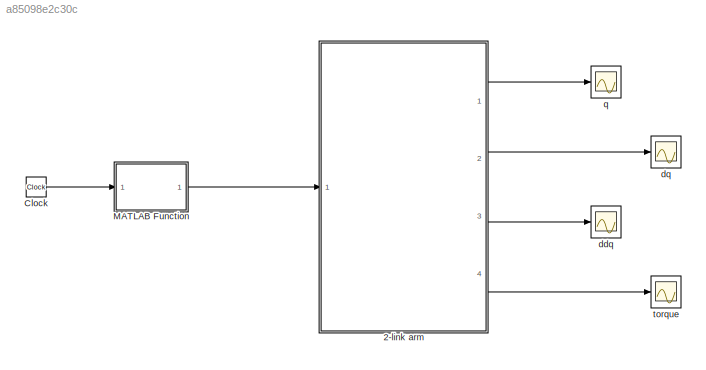
MODEL slx_a85098e2c30c
KIND model
CONFIG AbsTol = auto
CONFIG EnableMultiTasking = off
CONFIG FixedStep = auto
CONFIG MaxStep = auto
CONFIG MinStep = auto
CONFIG RelTol = 1e-3
CONFIG SampleTimeConstraint = Unconstrained
CONFIG SolverName = VariableStepAuto
CONFIG StartTime = 0.0
CONFIG StopTime = 120
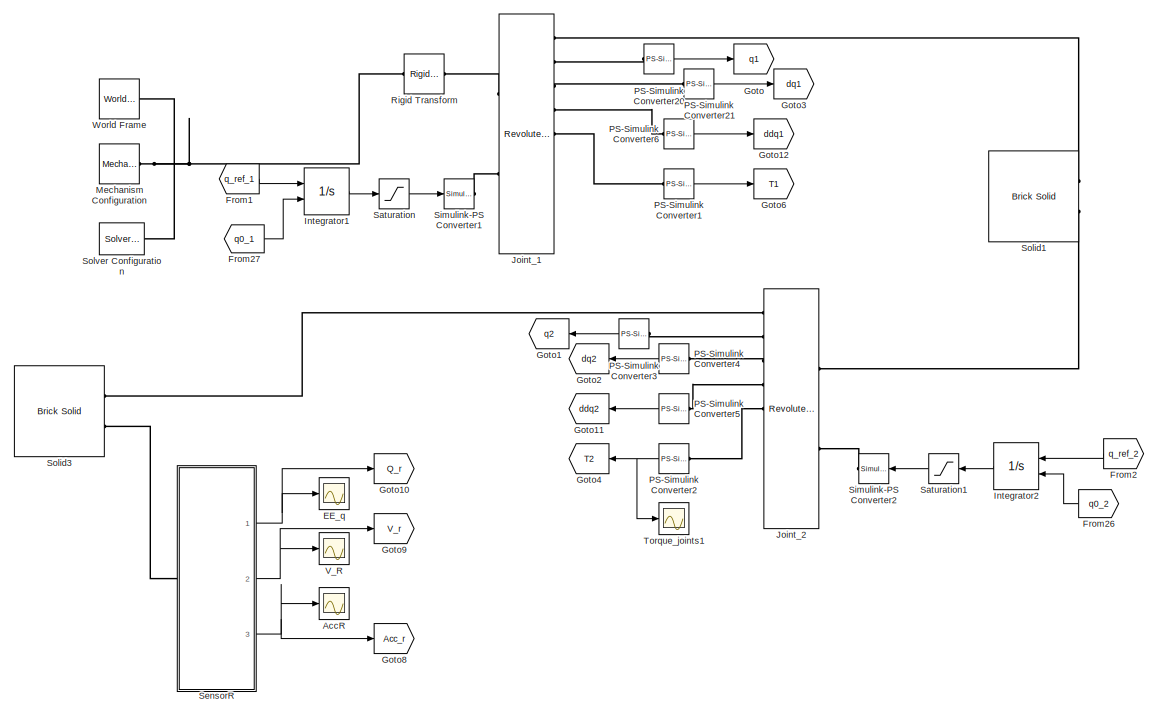
[diagram: 2-link arm - part 1/2, full width, top band]
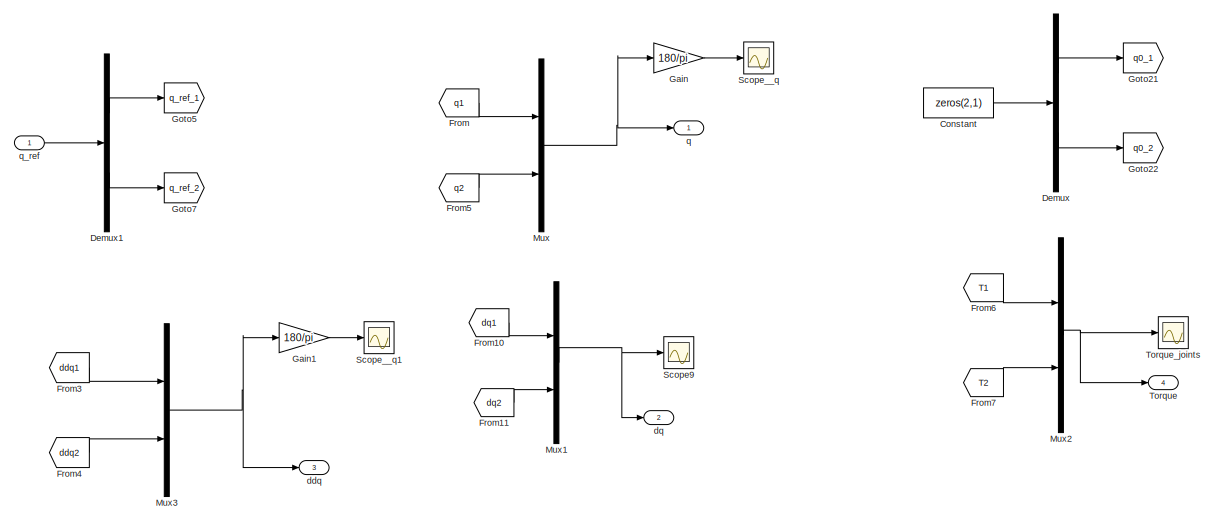
[diagram: 2-link arm - part 2/2, full width, bottom band]
BLOCK [SubSystem] 2-link arm
  Ports = [1, 4]
  RequestExecContextInheritance = off
BLOCK [Scope] 2-link arm/AccR
  Floating = off
  NumInputPorts = 1
  Ports = [1]
  ScopeSpecificationString = Simulink.scopes.TimeScopeBlockCfg('CurrentConfiguration', extmgr.ConfigurationSet(extmgr.Configuration('Core','General UI',true),extmgr.Configuration('Core','Source UI',true),extmgr.Configuration('Sources','WiredSimulink',true,'DataLoggingVariableName','ScopeData1','DataLoggingLimitDataPoints',true,'DataLoggingSaveFormat','StructureWithTime','DataLoggingDecimation','1','DataLoggingDecimateData',tr...<+1533ch>
BLOCK [Constant] 2-link arm/Constant
  Value = zeros(2,1)
BLOCK [Demux] 2-link arm/Demux
  Outputs = 2
  Ports = [1, 2]
BLOCK [Demux] 2-link arm/Demux1
  Outputs = 2
  Ports = [1, 2]
BLOCK [Scope] 2-link arm/EE_q
  Floating = off
  NumInputPorts = 1
  Ports = [1]
  ScopeSpecificationString = Simulink.scopes.TimeScopeBlockCfg('CurrentConfiguration', extmgr.ConfigurationSet(extmgr.Configuration('Core','General UI',true),extmgr.Configuration('Core','Source UI',true),extmgr.Configuration('Sources','WiredSimulink',true,'DataLoggingVariableName','ScopeData2','DataLoggingLimitDataPoints',true,'DataLoggingSaveFormat','Array','DataLoggingDecimation','1','DataLoggingDecimateData',true),extmgr.C...<+1597ch>
BLOCK [From] 2-link arm/From
  GotoTag = q1
BLOCK [From] 2-link arm/From1
  GotoTag = q_ref_1
BLOCK [From] 2-link arm/From10
  GotoTag = dq1
BLOCK [From] 2-link arm/From11
  GotoTag = dq2
BLOCK [From] 2-link arm/From2
  GotoTag = q_ref_2
  NameLocation = top
BLOCK [From] 2-link arm/From26
  GotoTag = q0_2
  NameLocation = top
BLOCK [From] 2-link arm/From27
  GotoTag = q0_1
BLOCK [From] 2-link arm/From3
  GotoTag = ddq1
BLOCK [From] 2-link arm/From4
  GotoTag = ddq2
BLOCK [From] 2-link arm/From5
  GotoTag = q2
BLOCK [From] 2-link arm/From6
  GotoTag = T1
BLOCK [From] 2-link arm/From7
  GotoTag = T2
BLOCK [Gain] 2-link arm/Gain
  Gain = 180/pi
BLOCK [Gain] 2-link arm/Gain1
  Gain = 180/pi
BLOCK [Goto] 2-link arm/Goto
  GotoTag = q1
BLOCK [Goto] 2-link arm/Goto1
  GotoTag = q2
  NameLocation = top
BLOCK [Goto] 2-link arm/Goto10
  GotoTag = Q_r
BLOCK [Goto] 2-link arm/Goto11
  GotoTag = ddq2
  NameLocation = top
BLOCK [Goto] 2-link arm/Goto12
  GotoTag = ddq1
BLOCK [Goto] 2-link arm/Goto2
  GotoTag = dq2
  NameLocation = top
BLOCK [Goto] 2-link arm/Goto21
  GotoTag = q0_1
BLOCK [Goto] 2-link arm/Goto22
  GotoTag = q0_2
BLOCK [Goto] 2-link arm/Goto3
  GotoTag = dq1
BLOCK [Goto] 2-link arm/Goto4
  GotoTag = T2
  NameLocation = top
BLOCK [Goto] 2-link arm/Goto5
  GotoTag = q_ref_1
BLOCK [Goto] 2-link arm/Goto6
  GotoTag = T1
BLOCK [Goto] 2-link arm/Goto7
  GotoTag = q_ref_2
BLOCK [Goto] 2-link arm/Goto8
  GotoTag = Acc_r
BLOCK [Goto] 2-link arm/Goto9
  GotoTag = V_r
BLOCK [Integrator] 2-link arm/Integrator1
  InitialConditionSource = external
  Ports = [2, 1]
BLOCK [Integrator] 2-link arm/Integrator2
  InitialConditionSource = external
  NameLocation = top
  Ports = [2, 1]
BLOCK [Reference] 2-link arm/Joint_1  REF=sm_lib/Joints/Revolute Joint
  Ports = [0, 0, 0, 0, 0, 2, 9]
  SourceBlock = sm_lib/Joints/Revolute Joint
  SourceProductBaseCode = MS
  SourceType = Revolute Joint
BLOCK [Reference] 2-link arm/Joint_2  REF=sm_lib/Joints/Revolute Joint
  Ports = [0, 0, 0, 0, 0, 2, 9]
  SourceBlock = sm_lib/Joints/Revolute Joint
  SourceProductBaseCode = MS
  SourceType = Revolute Joint
BLOCK [Reference] 2-link arm/Mechanism Configuration  REF=sm_lib/Utilities/Mechanism
Configuration
  Ports = [0, 0, 0, 0, 0, 0, 1]
  SourceBlock = sm_lib/Utilities/Mechanism\nConfiguration
  SourceProductBaseCode = MS
  SourceType = Mechanism\nConfiguration
BLOCK [Mux] 2-link arm/Mux
  DisplayOption = bar
  Inputs = 2
  Ports = [2, 1]
BLOCK [Mux] 2-link arm/Mux1
  DisplayOption = bar
  Inputs = 2
  Ports = [2, 1]
BLOCK [Mux] 2-link arm/Mux2
  DisplayOption = bar
  Inputs = 2
  Ports = [2, 1]
BLOCK [Mux] 2-link arm/Mux3
  DisplayOption = bar
  Inputs = 2
  Ports = [2, 1]
BLOCK [Reference] 2-link arm/PS-Simulink Converter1  REF=nesl_utility/PS-Simulink
Converter
  Ports = [0, 1, 0, 0, 0, 1]
  SourceBlock = nesl_utility/PS-Simulink\nConverter
  SourceProductBaseCode = SS
  SourceType = PS-Simulink\nConverter
BLOCK [Reference] 2-link arm/PS-Simulink Converter2  REF=nesl_utility/PS-Simulink
Converter
  NameLocation = top
  Ports = [0, 1, 0, 0, 0, 1]
  SourceBlock = nesl_utility/PS-Simulink\nConverter
  SourceProductBaseCode = SS
  SourceType = PS-Simulink\nConverter
BLOCK [Reference] 2-link arm/PS-Simulink Converter20  REF=nesl_utility/PS-Simulink
Converter
  Ports = [0, 1, 0, 0, 0, 1]
  SourceBlock = nesl_utility/PS-Simulink\nConverter
  SourceProductBaseCode = SS
  SourceType = PS-Simulink\nConverter
BLOCK [Reference] 2-link arm/PS-Simulink Converter21  REF=nesl_utility/PS-Simulink
Converter
  Ports = [0, 1, 0, 0, 0, 1]
  SourceBlock = nesl_utility/PS-Simulink\nConverter
  SourceProductBaseCode = SS
  SourceType = PS-Simulink\nConverter
BLOCK [Reference] 2-link arm/PS-Simulink Converter3  REF=nesl_utility/PS-Simulink
Converter
  NameLocation = top
  Ports = [0, 1, 0, 0, 0, 1]
  SourceBlock = nesl_utility/PS-Simulink\nConverter
  SourceProductBaseCode = SS
  SourceType = PS-Simulink\nConverter
BLOCK [Reference] 2-link arm/PS-Simulink Converter4  REF=nesl_utility/PS-Simulink
Converter
  NameLocation = top
  Ports = [0, 1, 0, 0, 0, 1]
  SourceBlock = nesl_utility/PS-Simulink\nConverter
  SourceProductBaseCode = SS
  SourceType = PS-Simulink\nConverter
BLOCK [Reference] 2-link arm/PS-Simulink Converter5  REF=nesl_utility/PS-Simulink
Converter
  NameLocation = top
  Ports = [0, 1, 0, 0, 0, 1]
  SourceBlock = nesl_utility/PS-Simulink\nConverter
  SourceProductBaseCode = SS
  SourceType = PS-Simulink\nConverter
BLOCK [Reference] 2-link arm/PS-Simulink Converter6  REF=nesl_utility/PS-Simulink
Converter
  Ports = [0, 1, 0, 0, 0, 1]
  SourceBlock = nesl_utility/PS-Simulink\nConverter
  SourceProductBaseCode = SS
  SourceType = PS-Simulink\nConverter
BLOCK [Reference] 2-link arm/Rigid Transform  REF=sm_lib/Frames and
Transforms/Rigid
Transform
  Ports = [0, 0, 0, 0, 0, 1, 1]
  SourceBlock = sm_lib/Frames and\nTransforms/Rigid\nTransform
  SourceProductBaseCode = MS
  SourceType = Rigid\nTransform
BLOCK [Saturate] 2-link arm/Saturation
  LowerLimit = -170*pi/180
  UpperLimit = 170*pi/180
BLOCK [Saturate] 2-link arm/Saturation1
  LowerLimit = -170*pi/180
  UpperLimit = 170*pi/180
BLOCK [Scope] 2-link arm/Scope9
  Floating = off
  NumInputPorts = 1
  Ports = [1]
  ScopeSpecificationString = Simulink.scopes.TimeScopeBlockCfg('CurrentConfiguration', extmgr.ConfigurationSet(extmgr.Configuration('Core','General UI',true),extmgr.Configuration('Core','Source UI',true),extmgr.Configuration('Sources','WiredSimulink',true,'DataLoggingVariableName','ScopeData4','DataLoggingLimitDataPoints',true,'DataLoggingSaveFormat','Array','DataLoggingDecimation','1','DataLoggingDecimateData',true),extmgr.C...<+1635ch>
BLOCK [Scope] 2-link arm/Scope__q
  Floating = off
  NumInputPorts = 1
  Ports = [1]
  ScopeSpecificationString = Simulink.scopes.TimeScopeBlockCfg('CurrentConfiguration', extmgr.ConfigurationSet(extmgr.Configuration('Core','General UI',true),extmgr.Configuration('Core','Source UI',true),extmgr.Configuration('Sources','WiredSimulink',true,'DataLoggingVariableName','ScopeData5','DataLoggingLimitDataPoints',true,'DataLoggingSaveFormat','Array','DataLoggingDecimation','1','DataLoggingDecimateData',true),extmgr.C...<+1545ch>
BLOCK [Scope] 2-link arm/Scope__q1
  Floating = off
  NumInputPorts = 1
  Ports = [1]
  ScopeSpecificationString = Simulink.scopes.TimeScopeBlockCfg('CurrentConfiguration', extmgr.ConfigurationSet(extmgr.Configuration('Core','General UI',true),extmgr.Configuration('Core','Source UI',true),extmgr.Configuration('Sources','WiredSimulink',true,'DataLoggingVariableName','ScopeData3','DataLoggingLimitDataPoints',true,'DataLoggingSaveFormat','Array','DataLoggingDecimation','1','DataLoggingDecimateData',true),extmgr.C...<+1545ch>
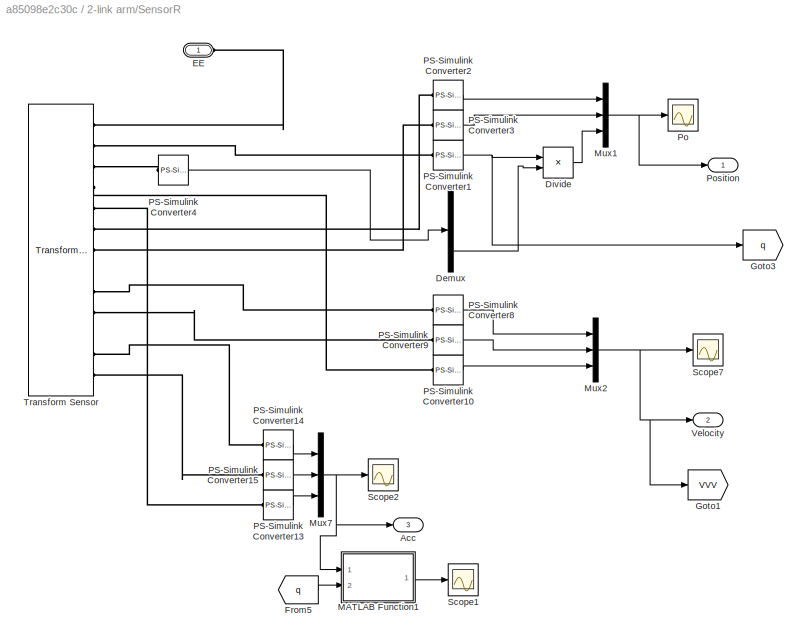
BLOCK [SubSystem] 2-link arm/SensorR
  Ports = [0, 3, 0, 0, 0, 1]
  RequestExecContextInheritance = off
BLOCK [Outport] 2-link arm/SensorR/Acc
  Port = 3
  VectorParamsAs1DForOutWhenUnconnected = off
BLOCK [Demux] 2-link arm/SensorR/Demux
  Outputs = 3
  Ports = [1, 3]
BLOCK [Product] 2-link arm/SensorR/Divide
  Inputs = **
  Ports = [2, 1]
BLOCK [PMIOPort] 2-link arm/SensorR/EE
  Side = Left
BLOCK [From] 2-link arm/SensorR/From5
  GotoTag = q
BLOCK [Goto] 2-link arm/SensorR/Goto1
  GotoTag = VVV
BLOCK [Goto] 2-link arm/SensorR/Goto3
  GotoTag = q
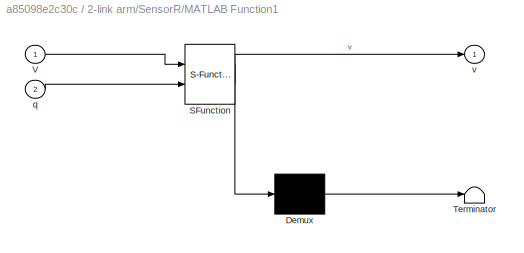
BLOCK [SubSystem] 2-link arm/SensorR/MATLAB Function1
  ErrorFcn = Stateflow.Translate.translate
  PermitHierarchicalResolution = ExplicitOnly
  Ports = [2, 1]
  RequestExecContextInheritance = off
  SFBlockType = MATLAB Function
  TreatAsAtomicUnit = on
BLOCK [Demux] 2-link arm/SensorR/MATLAB Function1/ Demux 
  Outputs = 1
  Ports = [1, 1]
BLOCK [S-Function] 2-link arm/SensorR/MATLAB Function1/ SFunction 
  EnableBusSupport = off
  FunctionName = sf_sfun
  PortCounts = [2 2]
  Ports = [2, 2]
  SFcnIsStateOwnerBlock = off
  SFunctionDeploymentMode = off
  Tag = Stateflow S-Function 11
BLOCK [Terminator] 2-link arm/SensorR/MATLAB Function1/ Terminator 
BLOCK [Inport] 2-link arm/SensorR/MATLAB Function1/V
BLOCK [Inport] 2-link arm/SensorR/MATLAB Function1/q
  Port = 2
BLOCK [Outport] 2-link arm/SensorR/MATLAB Function1/v
  VectorParamsAs1DForOutWhenUnconnected = off
BLOCK [Mux] 2-link arm/SensorR/Mux1
  DisplayOption = bar
  Inputs = 3
  Ports = [3, 1]
BLOCK [Mux] 2-link arm/SensorR/Mux2
  DisplayOption = bar
  Inputs = 3
  Ports = [3, 1]
BLOCK [Mux] 2-link arm/SensorR/Mux7
  DisplayOption = bar
  Inputs = 3
  Ports = [3, 1]
BLOCK [Reference] 2-link arm/SensorR/PS-Simulink Converter1  REF=nesl_utility/PS-Simulink
Converter
  Ports = [0, 1, 0, 0, 0, 1]
  SourceBlock = nesl_utility/PS-Simulink\nConverter
  SourceProductBaseCode = SS
  SourceType = PS-Simulink\nConverter
BLOCK [Reference] 2-link arm/SensorR/PS-Simulink Converter10  REF=nesl_utility/PS-Simulink
Converter
  Ports = [0, 1, 0, 0, 0, 1]
  SourceBlock = nesl_utility/PS-Simulink\nConverter
  SourceProductBaseCode = SS
  SourceType = PS-Simulink\nConverter
BLOCK [Reference] 2-link arm/SensorR/PS-Simulink Converter13  REF=nesl_utility/PS-Simulink
Converter
  Ports = [0, 1, 0, 0, 0, 1]
  SourceBlock = nesl_utility/PS-Simulink\nConverter
  SourceProductBaseCode = SS
  SourceType = PS-Simulink\nConverter
BLOCK [Reference] 2-link arm/SensorR/PS-Simulink Converter14  REF=nesl_utility/PS-Simulink
Converter
  Ports = [0, 1, 0, 0, 0, 1]
  SourceBlock = nesl_utility/PS-Simulink\nConverter
  SourceProductBaseCode = SS
  SourceType = PS-Simulink\nConverter
BLOCK [Reference] 2-link arm/SensorR/PS-Simulink Converter15  REF=nesl_utility/PS-Simulink
Converter
  Ports = [0, 1, 0, 0, 0, 1]
  SourceBlock = nesl_utility/PS-Simulink\nConverter
  SourceProductBaseCode = SS
  SourceType = PS-Simulink\nConverter
BLOCK [Reference] 2-link arm/SensorR/PS-Simulink Converter2  REF=nesl_utility/PS-Simulink
Converter
  Ports = [0, 1, 0, 0, 0, 1]
  SourceBlock = nesl_utility/PS-Simulink\nConverter
  SourceProductBaseCode = SS
  SourceType = PS-Simulink\nConverter
BLOCK [Reference] 2-link arm/SensorR/PS-Simulink Converter3  REF=nesl_utility/PS-Simulink
Converter
  Ports = [0, 1, 0, 0, 0, 1]
  SourceBlock = nesl_utility/PS-Simulink\nConverter
  SourceProductBaseCode = SS
  SourceType = PS-Simulink\nConverter
BLOCK [Reference] 2-link arm/SensorR/PS-Simulink Converter4  REF=nesl_utility/PS-Simulink
Converter
  Ports = [0, 1, 0, 0, 0, 1]
  SourceBlock = nesl_utility/PS-Simulink\nConverter
  SourceProductBaseCode = SS
  SourceType = PS-Simulink\nConverter
BLOCK [Reference] 2-link arm/SensorR/PS-Simulink Converter8  REF=nesl_utility/PS-Simulink
Converter
  Ports = [0, 1, 0, 0, 0, 1]
  SourceBlock = nesl_utility/PS-Simulink\nConverter
  SourceProductBaseCode = SS
  SourceType = PS-Simulink\nConverter
BLOCK [Reference] 2-link arm/SensorR/PS-Simulink Converter9  REF=nesl_utility/PS-Simulink
Converter
  Ports = [0, 1, 0, 0, 0, 1]
  SourceBlock = nesl_utility/PS-Simulink\nConverter
  SourceProductBaseCode = SS
  SourceType = PS-Simulink\nConverter
BLOCK [Scope] 2-link arm/SensorR/Po
  Floating = off
  NumInputPorts = 1
  Ports = [1]
  ScopeSpecificationString = Simulink.scopes.TimeScopeBlockCfg('CurrentConfiguration', extmgr.ConfigurationSet(extmgr.Configuration('Core','General UI',true),extmgr.Configuration('Core','Source UI',true),extmgr.Configuration('Sources','WiredSimulink',true,'DataLoggingVariableName','ScopeData1'),extmgr.Configuration('Visuals','Time Domain',true,'SerializedDisplays',{struct('MinYLimReal','-0.24098','MaxYLimReal','0.32883','YLab...<+1515ch>
BLOCK [Outport] 2-link arm/SensorR/Position
  VectorParamsAs1DForOutWhenUnconnected = off
BLOCK [Scope] 2-link arm/SensorR/Scope1
  Floating = off
  NumInputPorts = 1
  Ports = [1]
  ScopeSpecificationString = Simulink.scopes.TimeScopeBlockCfg('CurrentConfiguration', extmgr.ConfigurationSet(extmgr.Configuration('Core','General UI',true),extmgr.Configuration('Core','Source UI',true),extmgr.Configuration('Sources','WiredSimulink',true,'DataLoggingVariableName','ScopeData7'),extmgr.Configuration('Visuals','Time Domain',true,'SerializedDisplays',{struct('MinYLimReal','-0.03479','MaxYLimReal','0.0131','YLabe...<+1470ch>
BLOCK [Scope] 2-link arm/SensorR/Scope2
  Floating = off
  NumInputPorts = 1
  Ports = [1]
  ScopeSpecificationString = Simulink.scopes.TimeScopeBlockCfg('CurrentConfiguration', extmgr.ConfigurationSet(extmgr.Configuration('Core','General UI',true),extmgr.Configuration('Core','Source UI',true),extmgr.Configuration('Sources','WiredSimulink',true,'DataLoggingVariableName','ScopeData2'),extmgr.Configuration('Visuals','Time Domain',true,'SerializedDisplays',{struct('MinYLimReal','-1.03896','MaxYLimReal','0.52542','YLab...<+1478ch>
BLOCK [Scope] 2-link arm/SensorR/Scope7
  Floating = off
  NumInputPorts = 1
  Ports = [1]
  ScopeSpecificationString = Simulink.scopes.TimeScopeBlockCfg('CurrentConfiguration', extmgr.ConfigurationSet(extmgr.Configuration('Core','General UI',true),extmgr.Configuration('Core','Source UI',true),extmgr.Configuration('Sources','WiredSimulink',true,'DataLoggingVariableName','ScopeData3'),extmgr.Configuration('Visuals','Time Domain',true,'SerializedDisplays',{struct('MinYLimReal','-0.01552','MaxYLimReal','0.1147','YLabe...<+1428ch>
BLOCK [Reference] 2-link arm/SensorR/Transform Sensor  REF=sm_lib/Frames and
Transforms/Transform
Sensor
  Ports = [0, 0, 0, 0, 0, 1, 13]
  SourceBlock = sm_lib/Frames and\nTransforms/Transform\nSensor
  SourceProductBaseCode = MS
  SourceType = Transform\nSensor
BLOCK [Outport] 2-link arm/SensorR/Velocity
  Port = 2
  VectorParamsAs1DForOutWhenUnconnected = off
BLOCK [Reference] 2-link arm/Simulink-PS Converter1  REF=nesl_utility/Simulink-PS
Converter
  Ports = [1, 0, 0, 0, 0, 0, 1]
  SourceBlock = nesl_utility/Simulink-PS\nConverter
  SourceProductBaseCode = SS
  SourceType = Simulink-PS\nConverter
BLOCK [Reference] 2-link arm/Simulink-PS Converter2  REF=nesl_utility/Simulink-PS
Converter
  NameLocation = top
  Ports = [1, 0, 0, 0, 0, 0, 1]
  SourceBlock = nesl_utility/Simulink-PS\nConverter
  SourceProductBaseCode = SS
  SourceType = Simulink-PS\nConverter
BLOCK [Reference] 2-link arm/Solid1  REF=sm_lib/Body Elements/Brick Solid
  NameLocation = top
  Ports = [0, 0, 0, 0, 0, 2, 1]
  SourceBlock = sm_lib/Body Elements/Brick Solid
  SourceProductBaseCode = MS
  SourceType = Brick Solid
BLOCK [Reference] 2-link arm/Solid3  REF=sm_lib/Body Elements/Brick Solid
  NameLocation = top
  Ports = [0, 0, 0, 0, 0, 2, 1]
  SourceBlock = sm_lib/Body Elements/Brick Solid
  SourceProductBaseCode = MS
  SourceType = Brick Solid
BLOCK [Reference] 2-link arm/Solver Configuration  REF=nesl_utility/Solver
Configuration
  Ports = [0, 0, 0, 0, 0, 0, 1]
  SourceBlock = nesl_utility/Solver\nConfiguration
  SourceProductBaseCode = SS
  SourceType = Solver\nConfiguration
BLOCK [Outport] 2-link arm/Torque
  Port = 4
  VectorParamsAs1DForOutWhenUnconnected = off
BLOCK [Scope] 2-link arm/Torque_joints
  Floating = off
  NumInputPorts = 1
  Ports = [1]
  ScopeSpecificationString = Simulink.scopes.TimeScopeBlockCfg('CurrentConfiguration', extmgr.ConfigurationSet(extmgr.Configuration('Core','General UI',true),extmgr.Configuration('Core','Source UI',true),extmgr.Configuration('Sources','WiredSimulink',true,'DataLoggingVariableName','ScopeData1'),extmgr.Configuration('Visuals','Time Domain',true,'SerializedDisplays',{struct('MinYLimReal','-133.15813','MaxYLimReal','73.63666','Y...<+1621ch>
BLOCK [Scope] 2-link arm/Torque_joints1
  Floating = off
  NumInputPorts = 1
  Ports = [1]
  ScopeSpecificationString = Simulink.scopes.TimeScopeBlockCfg('CurrentConfiguration', extmgr.ConfigurationSet(extmgr.Configuration('Core','General UI',true),extmgr.Configuration('Core','Source UI',true),extmgr.Configuration('Sources','WiredSimulink',true,'DataLoggingVariableName','ScopeData1'),extmgr.Configuration('Visuals','Time Domain',true,'SerializedDisplays',{struct('MinYLimReal','-113.4809','MaxYLimReal','-112.79952','...<+1468ch>
BLOCK [Scope] 2-link arm/V_R
  Floating = off
  NumInputPorts = 1
  Ports = [1]
  ScopeSpecificationString = Simulink.scopes.TimeScopeBlockCfg('CurrentConfiguration', extmgr.ConfigurationSet(extmgr.Configuration('Core','General UI',true),extmgr.Configuration('Core','Source UI',true),extmgr.Configuration('Sources','WiredSimulink',true,'DataLoggingVariableName','ScopeData4','DataLoggingLimitDataPoints',true,'DataLoggingSaveFormat','Array','DataLoggingDecimation','1','DataLoggingDecimateData',true),extmgr.C...<+1577ch>
BLOCK [Reference] 2-link arm/World Frame  REF=sm_lib/Frames and
Transforms/World Frame
  Ports = [0, 0, 0, 0, 0, 0, 1]
  SourceBlock = sm_lib/Frames and\nTransforms/World Frame
  SourceProductBaseCode = MS
  SourceType = World Frame
BLOCK [Outport] 2-link arm/ddq
  Port = 3
  VectorParamsAs1DForOutWhenUnconnected = off
BLOCK [Outport] 2-link arm/dq
  Port = 2
  VectorParamsAs1DForOutWhenUnconnected = off
BLOCK [Outport] 2-link arm/q
  VectorParamsAs1DForOutWhenUnconnected = off
BLOCK [Inport] 2-link arm/q_ref
BLOCK [Clock] Clock
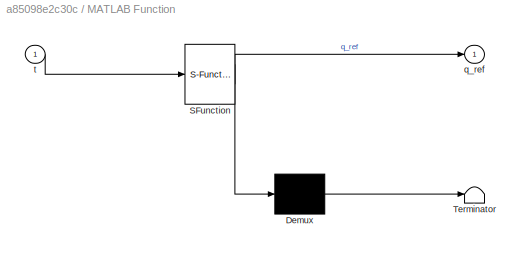
BLOCK [SubSystem] MATLAB Function
  ErrorFcn = Stateflow.Translate.translate
  PermitHierarchicalResolution = ExplicitOnly
  Ports = [1, 1]
  RequestExecContextInheritance = off
  SFBlockType = MATLAB Function
  TreatAsAtomicUnit = on
BLOCK [Demux] MATLAB Function/ Demux 
  Outputs = 1
  Ports = [1, 1]
BLOCK [S-Function] MATLAB Function/ SFunction 
  EnableBusSupport = off
  FunctionName = sf_sfun
  PortCounts = [1 2]
  Ports = [1, 2]
  SFcnIsStateOwnerBlock = off
  SFunctionDeploymentMode = off
  Tag = Stateflow S-Function 2
BLOCK [Terminator] MATLAB Function/ Terminator 
BLOCK [Outport] MATLAB Function/q_ref
  VectorParamsAs1DForOutWhenUnconnected = off
BLOCK [Inport] MATLAB Function/t
BLOCK [Scope] ddq
  Floating = off
  NumInputPorts = 1
  Ports = [1]
  ScopeSpecificationString = Simulink.scopes.TimeScopeBlockCfg('CurrentConfiguration', extmgr.ConfigurationSet(extmgr.Configuration('Core','General UI',true),extmgr.Configuration('Core','Source UI',true),extmgr.Configuration('Sources','WiredSimulink',true,'DataLoggingVariableName','sim_ddq','DataLogging',true,'DataLoggingSaveFormat','StructureWithTime'),extmgr.Configuration('Visuals','Time Domain',true,'SerializedDisplays',{s...<+1448ch>
BLOCK [Scope] dq
  Floating = off
  NumInputPorts = 1
  Ports = [1]
  ScopeSpecificationString = Simulink.scopes.TimeScopeBlockCfg('CurrentConfiguration', extmgr.ConfigurationSet(extmgr.Configuration('Core','General UI',true),extmgr.Configuration('Core','Source UI',true),extmgr.Configuration('Sources','WiredSimulink',true,'DataLoggingVariableName','sim_dq','DataLogging',true,'DataLoggingSaveFormat','StructureWithTime'),extmgr.Configuration('Visuals','Time Domain',true,'SerializedDisplays',{st...<+1449ch>
BLOCK [Scope] q
  Floating = off
  NumInputPorts = 1
  Ports = [1]
  ScopeSpecificationString = Simulink.scopes.TimeScopeBlockCfg('CurrentConfiguration', extmgr.ConfigurationSet(extmgr.Configuration('Core','General UI',true),extmgr.Configuration('Core','Source UI',true),extmgr.Configuration('Sources','WiredSimulink',true,'DataLoggingVariableName','sim_q','DataLogging',true,'DataLoggingSaveFormat','StructureWithTime'),extmgr.Configuration('Visuals','Time Domain',true,'SerializedDisplays',{str...<+1442ch>
BLOCK [Scope] torque
  Floating = off
  NumInputPorts = 1
  Ports = [1]
  ScopeSpecificationString = Simulink.scopes.TimeScopeBlockCfg('CurrentConfiguration', extmgr.ConfigurationSet(extmgr.Configuration('Core','General UI',true),extmgr.Configuration('Core','Source UI',true),extmgr.Configuration('Sources','WiredSimulink',true,'DataLoggingVariableName','sim_torque','DataLogging',true,'DataLoggingSaveFormat','StructureWithTime'),extmgr.Configuration('Visuals','Time Domain',true,'SerializedDisplays'...<+1459ch>
LINE 2-link arm/Constant:1 -> 2-link arm/Demux:1
LINE 2-link arm/Demux1:1 -> 2-link arm/Goto5:1
LINE 2-link arm/Demux1:2 -> 2-link arm/Goto7:1
LINE 2-link arm/Demux:1 -> 2-link arm/Goto21:1
LINE 2-link arm/Demux:2 -> 2-link arm/Goto22:1
LINE 2-link arm/From10:1 -> 2-link arm/Mux1:1
LINE 2-link arm/From11:1 -> 2-link arm/Mux1:2
LINE 2-link arm/From1:1 -> 2-link arm/Integrator1:1
LINE 2-link arm/From26:1 -> 2-link arm/Integrator2:2
LINE 2-link arm/From27:1 -> 2-link arm/Integrator1:2
LINE 2-link arm/From2:1 -> 2-link arm/Integrator2:1
LINE 2-link arm/From3:1 -> 2-link arm/Mux3:1
LINE 2-link arm/From4:1 -> 2-link arm/Mux3:2
LINE 2-link arm/From5:1 -> 2-link arm/Mux:2
LINE 2-link arm/From6:1 -> 2-link arm/Mux2:1
LINE 2-link arm/From7:1 -> 2-link arm/Mux2:2
LINE 2-link arm/From:1 -> 2-link arm/Mux:1
LINE 2-link arm/Gain1:1 -> 2-link arm/Scope__q1:1
LINE 2-link arm/Gain:1 -> 2-link arm/Scope__q:1
LINE 2-link arm/Integrator1:1 -> 2-link arm/Saturation:1
LINE 2-link arm/Integrator2:1 -> 2-link arm/Saturation1:1
NET 2-link arm/Mux1:1 -> 2-link arm/Scope9:1, 2-link arm/dq:1
NET 2-link arm/Mux2:1 -> 2-link arm/Torque:1, 2-link arm/Torque_joints:1
NET 2-link arm/Mux3:1 -> 2-link arm/Gain1:1, 2-link arm/ddq:1
NET 2-link arm/Mux:1 -> 2-link arm/Gain:1, 2-link arm/q:1
LINE 2-link arm/PS-Simulink Converter1:1 -> 2-link arm/Goto6:1
LINE 2-link arm/PS-Simulink Converter20:1 -> 2-link arm/Goto:1
LINE 2-link arm/PS-Simulink Converter21:1 -> 2-link arm/Goto3:1
NET 2-link arm/PS-Simulink Converter2:1 -> 2-link arm/Goto4:1, 2-link arm/Torque_joints1:1
LINE 2-link arm/PS-Simulink Converter3:1 -> 2-link arm/Goto1:1
LINE 2-link arm/PS-Simulink Converter4:1 -> 2-link arm/Goto2:1
LINE 2-link arm/PS-Simulink Converter5:1 -> 2-link arm/Goto11:1
LINE 2-link arm/PS-Simulink Converter6:1 -> 2-link arm/Goto12:1
LINE 2-link arm/Saturation1:1 -> 2-link arm/Simulink-PS Converter2:1
LINE 2-link arm/Saturation:1 -> 2-link arm/Simulink-PS Converter1:1
LINE 2-link arm/SensorR/Demux:3 -> 2-link arm/SensorR/Divide:2
LINE 2-link arm/SensorR/Divide:1 -> 2-link arm/SensorR/Mux1:3
LINE 2-link arm/SensorR/From5:1 -> 2-link arm/SensorR/MATLAB Function1:2
LINE 2-link arm/SensorR/MATLAB Function1:1 -> 2-link arm/SensorR/Scope1:1
NET 2-link arm/SensorR/Mux1:1 -> 2-link arm/SensorR/Po:1, 2-link arm/SensorR/Position:1
NET 2-link arm/SensorR/Mux2:1 -> 2-link arm/SensorR/Goto1:1, 2-link arm/SensorR/Scope7:1, 2-link arm/SensorR/Velocity:1
NET 2-link arm/SensorR/Mux7:1 -> 2-link arm/SensorR/Acc:1, 2-link arm/SensorR/MATLAB Function1:1, 2-link arm/SensorR/Scope2:1
LINE 2-link arm/SensorR/PS-Simulink Converter10:1 -> 2-link arm/SensorR/Mux2:3
LINE 2-link arm/SensorR/PS-Simulink Converter13:1 -> 2-link arm/SensorR/Mux7:3
LINE 2-link arm/SensorR/PS-Simulink Converter14:1 -> 2-link arm/SensorR/Mux7:1
LINE 2-link arm/SensorR/PS-Simulink Converter15:1 -> 2-link arm/SensorR/Mux7:2
NET 2-link arm/SensorR/PS-Simulink Converter1:1 -> 2-link arm/SensorR/Divide:1, 2-link arm/SensorR/Goto3:1
LINE 2-link arm/SensorR/PS-Simulink Converter2:1 -> 2-link arm/SensorR/Mux1:1
LINE 2-link arm/SensorR/PS-Simulink Converter3:1 -> 2-link arm/SensorR/Mux1:2
LINE 2-link arm/SensorR/PS-Simulink Converter4:1 -> 2-link arm/SensorR/Demux:1
LINE 2-link arm/SensorR/PS-Simulink Converter8:1 -> 2-link arm/SensorR/Mux2:1
LINE 2-link arm/SensorR/PS-Simulink Converter9:1 -> 2-link arm/SensorR/Mux2:2
NET 2-link arm/SensorR:1 -> 2-link arm/EE_q:1, 2-link arm/Goto10:1
NET 2-link arm/SensorR:2 -> 2-link arm/Goto9:1, 2-link arm/V_R:1
NET 2-link arm/SensorR:3 -> 2-link arm/AccR:1, 2-link arm/Goto8:1
LINE 2-link arm/q_ref:1 -> 2-link arm/Demux1:1
LINE 2-link arm:1 -> q:1
LINE 2-link arm:2 -> dq:1
LINE 2-link arm:3 -> ddq:1
LINE 2-link arm:4 -> torque:1
LINE Clock:1 -> MATLAB Function:1
LINE MATLAB Function:1 -> 2-link arm:1
PLINE 2-link arm/Joint_1:LConn1 -- 2-link arm/Rigid Transform:RConn1
PLINE 2-link arm/Joint_1:LConn2 -- 2-link arm/Simulink-PS Converter1:RConn1
PLINE 2-link arm/Joint_1:RConn1 -- 2-link arm/Solid1:LConn1
PLINE 2-link arm/Joint_1:RConn2 -- 2-link arm/PS-Simulink Converter20:LConn1
PLINE 2-link arm/Joint_1:RConn3 -- 2-link arm/PS-Simulink Converter21:LConn1
PLINE 2-link arm/Joint_1:RConn4 -- 2-link arm/PS-Simulink Converter6:LConn1
PLINE 2-link arm/Joint_1:RConn5 -- 2-link arm/PS-Simulink Converter1:LConn1
PLINE 2-link arm/Joint_2:LConn1 -- 2-link arm/Solid1:LConn2
PLINE 2-link arm/Joint_2:LConn2 -- 2-link arm/Simulink-PS Converter2:RConn1
PLINE 2-link arm/Joint_2:RConn1 -- 2-link arm/Solid3:LConn1
PLINE 2-link arm/Joint_2:RConn2 -- 2-link arm/PS-Simulink Converter3:LConn1
PLINE 2-link arm/Joint_2:RConn3 -- 2-link arm/PS-Simulink Converter4:LConn1
PLINE 2-link arm/Joint_2:RConn4 -- 2-link arm/PS-Simulink Converter5:LConn1
PLINE 2-link arm/Joint_2:RConn5 -- 2-link arm/PS-Simulink Converter2:LConn1
PNET net1: 2-link arm/Mechanism Configuration:RConn1 -- 2-link arm/Rigid Transform:LConn1 -- 2-link arm/Solver Configuration:RConn1 -- 2-link arm/World Frame:RConn1
PLINE 2-link arm/SensorR/EE:RConn1 -- 2-link arm/SensorR/Transform Sensor:RConn1
PLINE 2-link arm/SensorR/PS-Simulink Converter10:LConn1 -- 2-link arm/SensorR/Transform Sensor:RConn4
PLINE 2-link arm/SensorR/PS-Simulink Converter13:LConn1 -- 2-link arm/SensorR/Transform Sensor:RConn5
PLINE 2-link arm/SensorR/PS-Simulink Converter14:LConn1 -- 2-link arm/SensorR/Transform Sensor:RConn12
PLINE 2-link arm/SensorR/PS-Simulink Converter15:LConn1 -- 2-link arm/SensorR/Transform Sensor:RConn13
PLINE 2-link arm/SensorR/PS-Simulink Converter1:LConn1 -- 2-link arm/SensorR/Transform Sensor:RConn2
PLINE 2-link arm/SensorR/PS-Simulink Converter2:LConn1 -- 2-link arm/SensorR/Transform Sensor:RConn6
PLINE 2-link arm/SensorR/PS-Simulink Converter3:LConn1 -- 2-link arm/SensorR/Transform Sensor:RConn7
PLINE 2-link arm/SensorR/PS-Simulink Converter4:LConn1 -- 2-link arm/SensorR/Transform Sensor:RConn3
PLINE 2-link arm/SensorR/PS-Simulink Converter8:LConn1 -- 2-link arm/SensorR/Transform Sensor:RConn9
PLINE 2-link arm/SensorR/PS-Simulink Converter9:LConn1 -- 2-link arm/SensorR/Transform Sensor:RConn10
PLINE 2-link arm/SensorR:LConn1 -- 2-link arm/Solid3:LConn2
note: NET lines group one-source signal fan-out (src -> all destinations, sorted); 1:1 wires keep LINE; PNET lines group multi-terminal physical nets as a canonical sorted terminal list (undirected conserving connections); 2-terminal nets keep the pairwise PLINE form
CHART 2-link arm/SensorR/MATLAB Function1 states=1 transitions=1
  STATE_LABEL 'eML_blk_kernel()'
  STATE_LABEL 'SCRIPT:\nfunction v = V_local(V,q)\n%#codegen\n\nR = [cos(q) sin(q)  0\n   -sin(q)  cos(q)   0\n    0       0       1];\n\nv = R*V;'
CHART MATLAB Function states=1 transitions=1
  STATE_LABEL 'eML_blk_kernel()'
  STATE_LABEL 'SCRIPT:\nfunction q_ref = fcn(t)\n\nq_ref=zeros(2,1);\n\nq_ref(1) =  0.3  * (sin(pi/3*t)        + sin(2*pi/3*t)    + sin(3/7 *pi*t));\nq_ref(2) =  0.15 * (sin(pi/5*t)        + sin(5*pi/3*t)    + sin(7/11*pi*t));\n'
CHART  states=0 transitions=0
CHART  states=0 transitions=0
